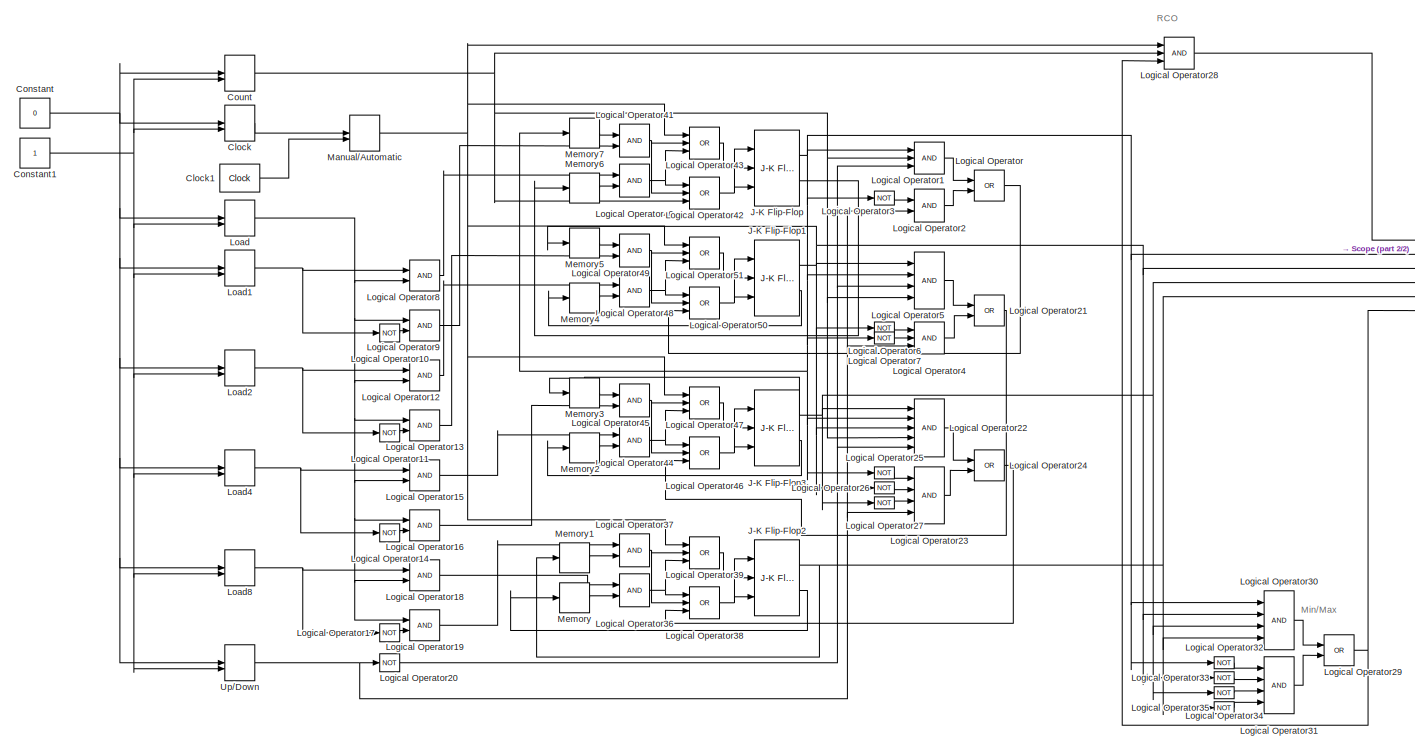
[diagram: root canvas - part 1/2, most of the canvas]
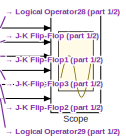
[diagram: root canvas - part 2/2, middle right region]
MODEL slx_cecf3d1d3bea
KIND model
CONFIG AbsTol = auto
CONFIG EnableMultiTasking = off
CONFIG FixedStep = auto
CONFIG MaxStep = auto
CONFIG MinStep = auto
CONFIG RelTol = 1e-3
CONFIG SampleTimeConstraint = Unconstrained
CONFIG Solver = VariableStepAuto
CONFIG SolverName = VariableStepAuto
CONFIG StartTime = 0.0
CONFIG StopTime = inf
BLOCK [ManualSwitch] Clock
BLOCK [Reference] Clock1  REF=simulink_extras/Flip Flops/Clock
  Ports = [0, 1]
  SourceBlock = simulink_extras/Flip Flops/Clock
  SourceProductBaseCode = SL
  SourceProductName = Simulink
  SourceType = Digital clock
BLOCK [Constant] Constant
  Value = 0
BLOCK [Constant] Constant1
BLOCK [ManualSwitch] Count
  CurrentSetting = 0
BLOCK [Reference] J-K Flip-Flop  REF=simulink_extras/Flip Flops/J-K
Flip-Flop
  Ports = [3, 2]
  SourceBlock = simulink_extras/Flip Flops/J-K\nFlip-Flop
  SourceProductBaseCode = SL
  SourceProductName = Simulink
  SourceType = JKFlipFlop
BLOCK [Reference] J-K Flip-Flop1  REF=simulink_extras/Flip Flops/J-K
Flip-Flop
  Ports = [3, 2]
  SourceBlock = simulink_extras/Flip Flops/J-K\nFlip-Flop
  SourceProductBaseCode = SL
  SourceProductName = Simulink
  SourceType = JKFlipFlop
BLOCK [Reference] J-K Flip-Flop2  REF=simulink_extras/Flip Flops/J-K
Flip-Flop
  Ports = [3, 2]
  SourceBlock = simulink_extras/Flip Flops/J-K\nFlip-Flop
  SourceProductBaseCode = SL
  SourceProductName = Simulink
  SourceType = JKFlipFlop
BLOCK [Reference] J-K Flip-Flop3  REF=simulink_extras/Flip Flops/J-K
Flip-Flop
  Ports = [3, 2]
  SourceBlock = simulink_extras/Flip Flops/J-K\nFlip-Flop
  SourceProductBaseCode = SL
  SourceProductName = Simulink
  SourceType = JKFlipFlop
BLOCK [ManualSwitch] Load
  CurrentSetting = 0
BLOCK [ManualSwitch] Load1
BLOCK [ManualSwitch] Load2
BLOCK [ManualSwitch] Load4
  CurrentSetting = 0
BLOCK [ManualSwitch] Load8
BLOCK [Logic] Logical Operator
  AllPortsSameDT = off
  Operator = OR
  OutDataTypeStr = boolean
  Ports = [2, 1]
BLOCK [Logic] Logical Operator1
  AllPortsSameDT = off
  Inputs = 3
  OutDataTypeStr = boolean
  Ports = [3, 1]
BLOCK [Logic] Logical Operator10
  AllPortsSameDT = off
  Operator = NOT
  OutDataTypeStr = boolean
  Ports = [1, 1]
BLOCK [Logic] Logical Operator11
  AllPortsSameDT = off
  Operator = NOT
  OutDataTypeStr = boolean
  Ports = [1, 1]
BLOCK [Logic] Logical Operator12
  AllPortsSameDT = off
  OutDataTypeStr = boolean
  Ports = [2, 1]
BLOCK [Logic] Logical Operator13
  AllPortsSameDT = off
  OutDataTypeStr = boolean
  Ports = [2, 1]
BLOCK [Logic] Logical Operator14
  AllPortsSameDT = off
  Operator = NOT
  OutDataTypeStr = boolean
  Ports = [1, 1]
BLOCK [Logic] Logical Operator15
  AllPortsSameDT = off
  OutDataTypeStr = boolean
  Ports = [2, 1]
BLOCK [Logic] Logical Operator16
  AllPortsSameDT = off
  OutDataTypeStr = boolean
  Ports = [2, 1]
BLOCK [Logic] Logical Operator17
  AllPortsSameDT = off
  Operator = NOT
  OutDataTypeStr = boolean
  Ports = [1, 1]
BLOCK [Logic] Logical Operator18
  AllPortsSameDT = off
  OutDataTypeStr = boolean
  Ports = [2, 1]
BLOCK [Logic] Logical Operator19
  AllPortsSameDT = off
  OutDataTypeStr = boolean
  Ports = [2, 1]
BLOCK [Logic] Logical Operator2
  AllPortsSameDT = off
  OutDataTypeStr = boolean
  Ports = [2, 1]
BLOCK [Logic] Logical Operator20
  AllPortsSameDT = off
  Operator = NOT
  OutDataTypeStr = boolean
  Ports = [1, 1]
BLOCK [Logic] Logical Operator21
  AllPortsSameDT = off
  Operator = OR
  OutDataTypeStr = boolean
  Ports = [2, 1]
BLOCK [Logic] Logical Operator22
  AllPortsSameDT = off
  Inputs = 5
  OutDataTypeStr = boolean
  Ports = [5, 1]
BLOCK [Logic] Logical Operator23
  AllPortsSameDT = off
  Inputs = 4
  OutDataTypeStr = boolean
  Ports = [4, 1]
BLOCK [Logic] Logical Operator24
  AllPortsSameDT = off
  Operator = OR
  OutDataTypeStr = boolean
  Ports = [2, 1]
BLOCK [Logic] Logical Operator25
  AllPortsSameDT = off
  Operator = NOT
  OutDataTypeStr = boolean
  Ports = [1, 1]
BLOCK [Logic] Logical Operator26
  AllPortsSameDT = off
  Operator = NOT
  OutDataTypeStr = boolean
  Ports = [1, 1]
BLOCK [Logic] Logical Operator27
  AllPortsSameDT = off
  Operator = NOT
  OutDataTypeStr = boolean
  Ports = [1, 1]
BLOCK [Logic] Logical Operator28
  AllPortsSameDT = off
  Inputs = 3
  OutDataTypeStr = boolean
  Ports = [3, 1]
BLOCK [Logic] Logical Operator29
  AllPortsSameDT = off
  Operator = OR
  OutDataTypeStr = boolean
  Ports = [2, 1]
BLOCK [Logic] Logical Operator3
  AllPortsSameDT = off
  Operator = NOT
  OutDataTypeStr = boolean
  Ports = [1, 1]
BLOCK [Logic] Logical Operator30
  AllPortsSameDT = off
  Inputs = 4
  OutDataTypeStr = boolean
  Ports = [4, 1]
BLOCK [Logic] Logical Operator31
  AllPortsSameDT = off
  Inputs = 4
  OutDataTypeStr = boolean
  Ports = [4, 1]
BLOCK [Logic] Logical Operator32
  AllPortsSameDT = off
  Operator = NOT
  OutDataTypeStr = boolean
  Ports = [1, 1]
BLOCK [Logic] Logical Operator33
  AllPortsSameDT = off
  Operator = NOT
  OutDataTypeStr = boolean
  Ports = [1, 1]
BLOCK [Logic] Logical Operator34
  AllPortsSameDT = off
  Operator = NOT
  OutDataTypeStr = boolean
  Ports = [1, 1]
BLOCK [Logic] Logical Operator35
  AllPortsSameDT = off
  Operator = NOT
  OutDataTypeStr = boolean
  Ports = [1, 1]
BLOCK [Logic] Logical Operator36
  AllPortsSameDT = off
  OutDataTypeStr = boolean
  Ports = [2, 1]
BLOCK [Logic] Logical Operator37
  AllPortsSameDT = off
  OutDataTypeStr = boolean
  Ports = [2, 1]
BLOCK [Logic] Logical Operator38
  AllPortsSameDT = off
  Inputs = 3
  Operator = OR
  OutDataTypeStr = boolean
  Ports = [3, 1]
BLOCK [Logic] Logical Operator39
  AllPortsSameDT = off
  Inputs = 3
  Operator = OR
  OutDataTypeStr = boolean
  Ports = [3, 1]
BLOCK [Logic] Logical Operator4
  AllPortsSameDT = off
  Inputs = 3
  OutDataTypeStr = boolean
  Ports = [3, 1]
BLOCK [Logic] Logical Operator40
  AllPortsSameDT = off
  OutDataTypeStr = boolean
  Ports = [2, 1]
BLOCK [Logic] Logical Operator41
  AllPortsSameDT = off
  OutDataTypeStr = boolean
  Ports = [2, 1]
BLOCK [Logic] Logical Operator42
  AllPortsSameDT = off
  Inputs = 3
  Operator = OR
  OutDataTypeStr = boolean
  Ports = [3, 1]
BLOCK [Logic] Logical Operator43
  AllPortsSameDT = off
  Inputs = 3
  Operator = OR
  OutDataTypeStr = boolean
  Ports = [3, 1]
BLOCK [Logic] Logical Operator44
  AllPortsSameDT = off
  OutDataTypeStr = boolean
  Ports = [2, 1]
BLOCK [Logic] Logical Operator45
  AllPortsSameDT = off
  OutDataTypeStr = boolean
  Ports = [2, 1]
BLOCK [Logic] Logical Operator46
  AllPortsSameDT = off
  Inputs = 3
  Operator = OR
  OutDataTypeStr = boolean
  Ports = [3, 1]
BLOCK [Logic] Logical Operator47
  AllPortsSameDT = off
  Inputs = 3
  Operator = OR
  OutDataTypeStr = boolean
  Ports = [3, 1]
BLOCK [Logic] Logical Operator48
  AllPortsSameDT = off
  OutDataTypeStr = boolean
  Ports = [2, 1]
BLOCK [Logic] Logical Operator49
  AllPortsSameDT = off
  OutDataTypeStr = boolean
  Ports = [2, 1]
BLOCK [Logic] Logical Operator5
  AllPortsSameDT = off
  Inputs = 4
  OutDataTypeStr = boolean
  Ports = [4, 1]
BLOCK [Logic] Logical Operator50
  AllPortsSameDT = off
  Inputs = 3
  Operator = OR
  OutDataTypeStr = boolean
  Ports = [3, 1]
BLOCK [Logic] Logical Operator51
  AllPortsSameDT = off
  Inputs = 3
  Operator = OR
  OutDataTypeStr = boolean
  Ports = [3, 1]
BLOCK [Logic] Logical Operator6
  AllPortsSameDT = off
  Operator = NOT
  OutDataTypeStr = boolean
  Ports = [1, 1]
BLOCK [Logic] Logical Operator7
  AllPortsSameDT = off
  Operator = NOT
  OutDataTypeStr = boolean
  Ports = [1, 1]
BLOCK [Logic] Logical Operator8
  AllPortsSameDT = off
  OutDataTypeStr = boolean
  Ports = [2, 1]
BLOCK [Logic] Logical Operator9
  AllPortsSameDT = off
  OutDataTypeStr = boolean
  Ports = [2, 1]
BLOCK [ManualSwitch] Manual//Automatic
  CurrentSetting = 0
BLOCK [Memory] Memory
BLOCK [Memory] Memory1
BLOCK [Memory] Memory2
BLOCK [Memory] Memory3
BLOCK [Memory] Memory4
BLOCK [Memory] Memory5
BLOCK [Memory] Memory6
BLOCK [Memory] Memory7
BLOCK [Scope] Scope
  Floating = off
  NumInputPorts = 6
  Ports = [6]
  ScopeSpecificationString = Simulink.scopes.TimeScopeBlockCfg('CurrentConfiguration', extmgr.ConfigurationSet(extmgr.Configuration('Core','General UI',true),extmgr.Configuration('Core','Source UI',true),extmgr.Configuration('Sources','WiredSimulink',true),extmgr.Configuration('Visuals','Time Domain',true,'SerializedDisplays',{struct('MinYLimReal','-0.125','MaxYLimReal','1.125','YLabelReal','','MinYLimMag','0.00000','MaxYLimM...<+1449ch>
BLOCK [ManualSwitch] Up//Down
ANNOTATION (root): Min/Max
ANNOTATION (root): RCO
LINE Clock1:1 -> Manual//Automatic:2
LINE Clock:1 -> Manual//Automatic:1
NET Constant1:1 -> Clock:2, Count:2, Load1:2, Load2:2, Load4:2, Load8:2, Load:2, Up//Down:2
NET Constant:1 -> Clock:1, Count:1, Load1:1, Load2:1, Load4:1, Load8:1, Load:1, Up//Down:1
NET Count:1 -> Logical Operator1:2, Logical Operator22:4, Logical Operator28:2, Logical Operator42:3, Logical Operator5:4
NET J-K Flip-Flop1:1 -> Logical Operator22:3, Logical Operator26:1, Logical Operator30:2, Logical Operator33:1, Logical Operator5:1, Logical Operator6:1, Memory5:1, Scope:3
LINE J-K Flip-Flop1:2 -> Memory4:1
NET J-K Flip-Flop2:1 -> Logical Operator30:4, Logical Operator35:1, Memory1:1, Scope:5
LINE J-K Flip-Flop2:2 -> Memory:1
NET J-K Flip-Flop3:1 -> Logical Operator22:1, Logical Operator27:1, Logical Operator30:3, Logical Operator34:1, Memory3:1, Scope:4
LINE J-K Flip-Flop3:2 -> Memory2:1
NET J-K Flip-Flop:1 -> Logical Operator1:1, Logical Operator22:2, Logical Operator25:1, Logical Operator30:1, Logical Operator32:1, Logical Operator3:1, Logical Operator5:2, Logical Operator7:1, Memory7:1, Scope:2
LINE J-K Flip-Flop:2 -> Memory6:1
NET Load1:1 -> Logical Operator10:1, Logical Operator8:1
NET Load2:1 -> Logical Operator11:1, Logical Operator12:1
NET Load4:1 -> Logical Operator14:1, Logical Operator15:1
NET Load8:1 -> Logical Operator17:1, Logical Operator18:1
NET Load:1 -> Logical Operator12:2, Logical Operator13:1, Logical Operator15:2, Logical Operator16:1, Logical Operator18:2, Logical Operator19:1, Logical Operator8:2, Logical Operator9:1
LINE Logical Operator10:1 -> Logical Operator9:2
LINE Logical Operator11:1 -> Logical Operator13:2
LINE Logical Operator12:1 -> Logical Operator48:1
LINE Logical Operator13:1 -> Logical Operator49:2
LINE Logical Operator14:1 -> Logical Operator16:2
LINE Logical Operator15:1 -> Logical Operator44:1
LINE Logical Operator16:1 -> Logical Operator45:2
LINE Logical Operator17:1 -> Logical Operator19:2
LINE Logical Operator18:1 -> Logical Operator36:1
LINE Logical Operator19:1 -> Logical Operator37:1
LINE Logical Operator1:1 -> Logical Operator:1
NET Logical Operator20:1 -> Logical Operator1:3, Logical Operator22:5, Logical Operator5:3
LINE Logical Operator21:1 -> Logical Operator46:3
LINE Logical Operator22:1 -> Logical Operator24:1
LINE Logical Operator23:1 -> Logical Operator24:2
LINE Logical Operator24:1 -> Logical Operator38:3
LINE Logical Operator25:1 -> Logical Operator23:1
LINE Logical Operator26:1 -> Logical Operator23:2
LINE Logical Operator27:1 -> Logical Operator23:3
LINE Logical Operator28:1 -> Scope:1
NET Logical Operator29:1 -> Logical Operator28:3, Scope:6
LINE Logical Operator2:1 -> Logical Operator:2
LINE Logical Operator30:1 -> Logical Operator29:1
LINE Logical Operator31:1 -> Logical Operator29:2
LINE Logical Operator32:1 -> Logical Operator31:1
LINE Logical Operator33:1 -> Logical Operator31:2
LINE Logical Operator34:1 -> Logical Operator31:3
LINE Logical Operator35:1 -> Logical Operator31:4
NET Logical Operator36:1 -> Logical Operator38:1, Logical Operator39:3
NET Logical Operator37:1 -> Logical Operator38:2, Logical Operator39:2
NET Logical Operator38:1 -> J-K Flip-Flop2:1, J-K Flip-Flop2:3
LINE Logical Operator39:1 -> J-K Flip-Flop2:2
LINE Logical Operator3:1 -> Logical Operator2:1
NET Logical Operator40:1 -> Logical Operator42:1, Logical Operator43:3
NET Logical Operator41:1 -> Logical Operator42:2, Logical Operator43:2
NET Logical Operator42:1 -> J-K Flip-Flop:1, J-K Flip-Flop:3
LINE Logical Operator43:1 -> J-K Flip-Flop:2
NET Logical Operator44:1 -> Logical Operator46:1, Logical Operator47:3
NET Logical Operator45:1 -> Logical Operator46:2, Logical Operator47:2
NET Logical Operator46:1 -> J-K Flip-Flop3:1, J-K Flip-Flop3:3
LINE Logical Operator47:1 -> J-K Flip-Flop3:2
NET Logical Operator48:1 -> Logical Operator50:1, Logical Operator51:3
NET Logical Operator49:1 -> Logical Operator50:2, Logical Operator51:2
LINE Logical Operator4:1 -> Logical Operator21:2
NET Logical Operator50:1 -> J-K Flip-Flop1:1, J-K Flip-Flop1:3
LINE Logical Operator51:1 -> J-K Flip-Flop1:2
LINE Logical Operator5:1 -> Logical Operator21:1
LINE Logical Operator6:1 -> Logical Operator4:1
LINE Logical Operator7:1 -> Logical Operator4:2
LINE Logical Operator8:1 -> Logical Operator40:1
LINE Logical Operator9:1 -> Logical Operator41:2
LINE Logical Operator:1 -> Logical Operator50:3
NET Manual//Automatic:1 -> Logical Operator28:1, Logical Operator39:1, Logical Operator43:1, Logical Operator47:1, Logical Operator51:1
LINE Memory1:1 -> Logical Operator37:2
LINE Memory2:1 -> Logical Operator44:2
LINE Memory3:1 -> Logical Operator45:1
LINE Memory4:1 -> Logical Operator48:2
LINE Memory5:1 -> Logical Operator49:1
LINE Memory6:1 -> Logical Operator40:2
LINE Memory7:1 -> Logical Operator41:1
LINE Memory:1 -> Logical Operator36:2
NET Up//Down:1 -> Logical Operator20:1, Logical Operator23:4, Logical Operator2:2, Logical Operator4:3
note: NET lines group one-source signal fan-out (src -> all destinations, sorted); 1:1 wires keep LINE
